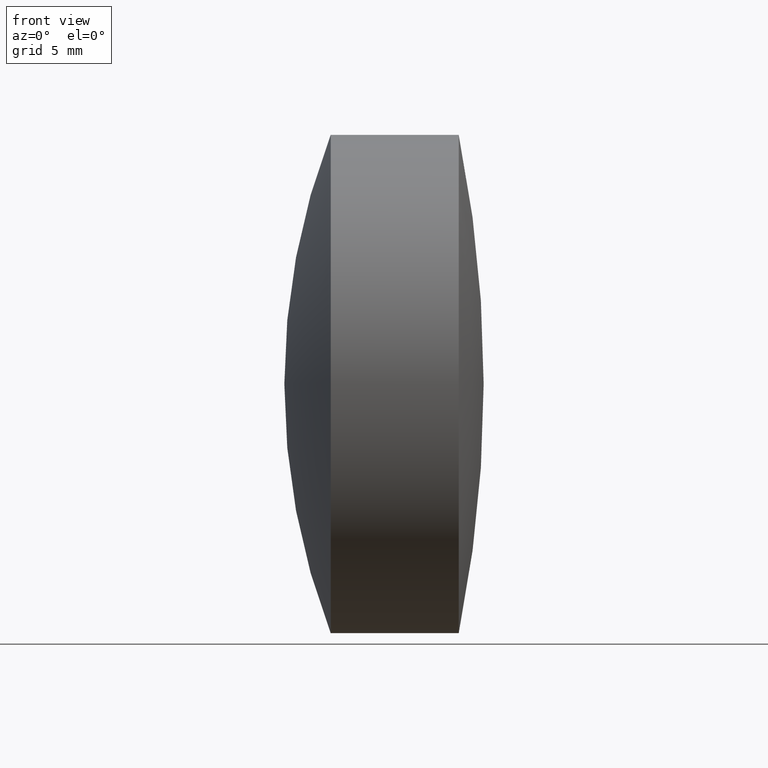
[diagram: clean part render]
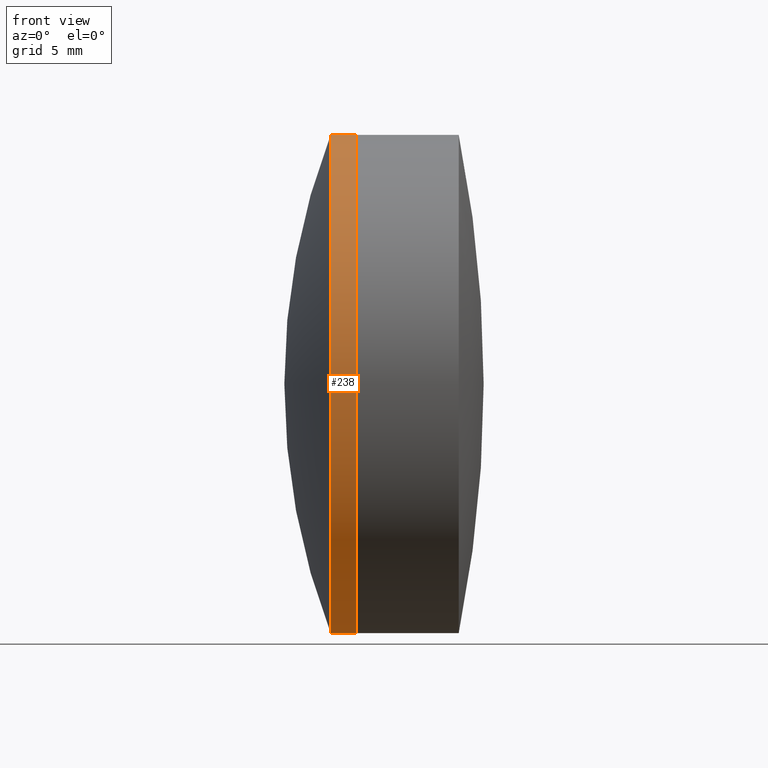
[diagram: same view with one face highlighted and labeled with its STEP entity id]
A machine part, front view. The second image highlights one B-rep face of the part: STEP entity #238.
In plain terms, the highlighted cylindrical surface (partial cylindrical patch) has radius 15 mm, axis along (-1, -0, -0).
Its self-contained STEP definition (entity closure, byte-faithful):
#5 = ORIENTED_EDGE ( 'NONE', *, *, #141, .T. ) ;
#7 = DIRECTION ( 'NONE',  ( -1.000000000000000000, -0.0000000000000000000, -0.0000000000000000000 ) ) ;
#21 = DIRECTION ( 'NONE',  ( 0.0000000000000000000, 0.0000000000000000000, 1.000000000000000000 ) ) ;
#23 = EDGE_CURVE ( 'NONE', #319, #199, #135, .T. ) ;
#31 = DIRECTION ( 'NONE',  ( 0.0000000000000000000, 0.0000000000000000000, 1.000000000000000000 ) ) ;
#85 = DIRECTION ( 'NONE',  ( -1.000000000000000000, -0.0000000000000000000, -0.0000000000000000000 ) ) ;
#87 = CIRCLE ( 'NONE', #277, 14.99999999999999600 ) ;
#97 = CIRCLE ( 'NONE', #307, 14.99999999999999600 ) ;
#98 = VERTEX_POINT ( 'NONE', #192 ) ;
#101 = EDGE_CURVE ( 'NONE', #199, #98, #87, .T. ) ;
#112 = CARTESIAN_POINT ( 'NONE',  ( 15.44659696245503600, 0.0000000000000000000, 0.0000000000000000000 ) ) ;
#116 = CARTESIAN_POINT ( 'NONE',  ( 13.90067623035469100, 0.0000000000000000000, 0.0000000000000000000 ) ) ;
#120 = CARTESIAN_POINT ( 'NONE',  ( 15.44659696245503600, 1.836970198721029200E-015, -14.99999999999999600 ) ) ;
#121 = FACE_OUTER_BOUND ( 'NONE', #127, .T. ) ;
#127 = EDGE_LOOP ( 'NONE', ( #157, #5, #206, #325 ) ) ;
#135 = LINE ( 'NONE', #334, #137 ) ;
#137 = VECTOR ( 'NONE', #150, 1000.000000000000000 ) ;
#141 = EDGE_CURVE ( 'NONE', #319, #194, #97, .T. ) ;
#150 = DIRECTION ( 'NONE',  ( -1.000000000000000000, -0.0000000000000000000, -0.0000000000000000000 ) ) ;
#157 = ORIENTED_EDGE ( 'NONE', *, *, #23, .F. ) ;
#164 = CARTESIAN_POINT ( 'NONE',  ( 13.90067623035469200, 0.0000000000000000000, -14.99999999999999800 ) ) ;
#166 = CARTESIAN_POINT ( 'NONE',  ( 15.44659696245503600, 0.0000000000000000000, 14.99999999999999600 ) ) ;
#177 = EDGE_CURVE ( 'NONE', #194, #98, #235, .T. ) ;
#186 = CYLINDRICAL_SURFACE ( 'NONE', #203, 14.99999999999999600 ) ;
#192 = CARTESIAN_POINT ( 'NONE',  ( 13.90067623035469200, -1.836970198721029600E-015, 14.99999999999999800 ) ) ;
#194 = VERTEX_POINT ( 'NONE', #166 ) ;
#199 = VERTEX_POINT ( 'NONE', #164 ) ;
#203 = AXIS2_PLACEMENT_3D ( 'NONE', #220, #249, #21 ) ;
#206 = ORIENTED_EDGE ( 'NONE', *, *, #177, .T. ) ;
#210 = CARTESIAN_POINT ( 'NONE',  ( -0.8160621761658039000, 0.0000000000000000000, 14.99999999999999600 ) ) ;
#220 = CARTESIAN_POINT ( 'NONE',  ( -0.8160621761658039000, 0.0000000000000000000, 0.0000000000000000000 ) ) ;
#235 = LINE ( 'NONE', #210, #242 ) ;
#238 = ADVANCED_FACE ( 'NONE', ( #121 ), #186, .T. ) ;
#242 = VECTOR ( 'NONE', #295, 1000.000000000000000 ) ;
#249 = DIRECTION ( 'NONE',  ( -1.000000000000000000, -0.0000000000000000000, -0.0000000000000000000 ) ) ;
#277 = AXIS2_PLACEMENT_3D ( 'NONE', #116, #7, #31 ) ;
#282 = DIRECTION ( 'NONE',  ( 0.0000000000000000000, 0.0000000000000000000, 1.000000000000000000 ) ) ;
#295 = DIRECTION ( 'NONE',  ( -1.000000000000000000, -0.0000000000000000000, -0.0000000000000000000 ) ) ;
#307 = AXIS2_PLACEMENT_3D ( 'NONE', #112, #85, #282 ) ;
#319 = VERTEX_POINT ( 'NONE', #120 ) ;
#325 = ORIENTED_EDGE ( 'NONE', *, *, #101, .F. ) ;
#334 = CARTESIAN_POINT ( 'NONE',  ( -0.8160621761658039000, 1.836970198721029200E-015, -14.99999999999999600 ) ) ;